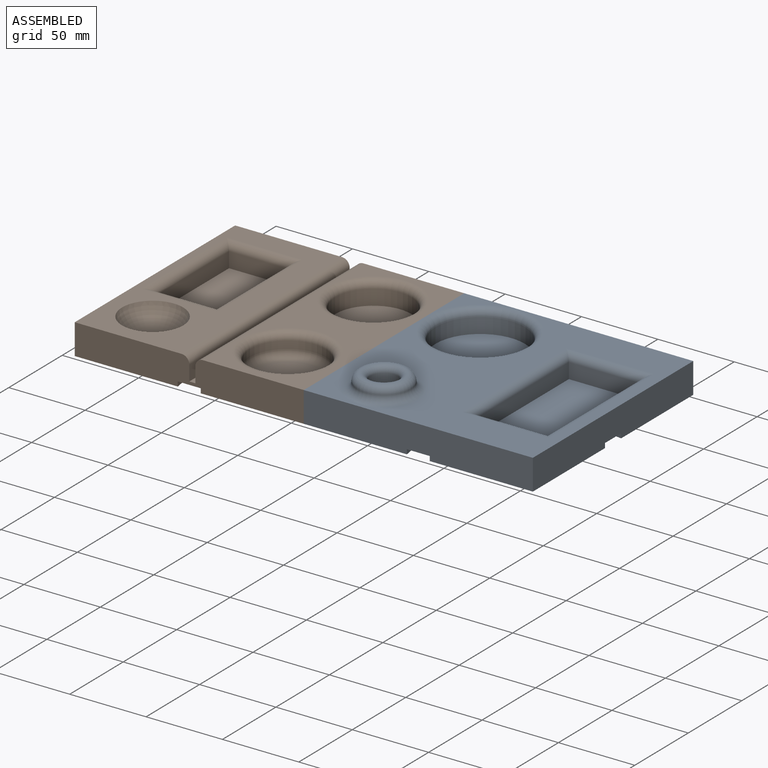
[diagram: assembled view]
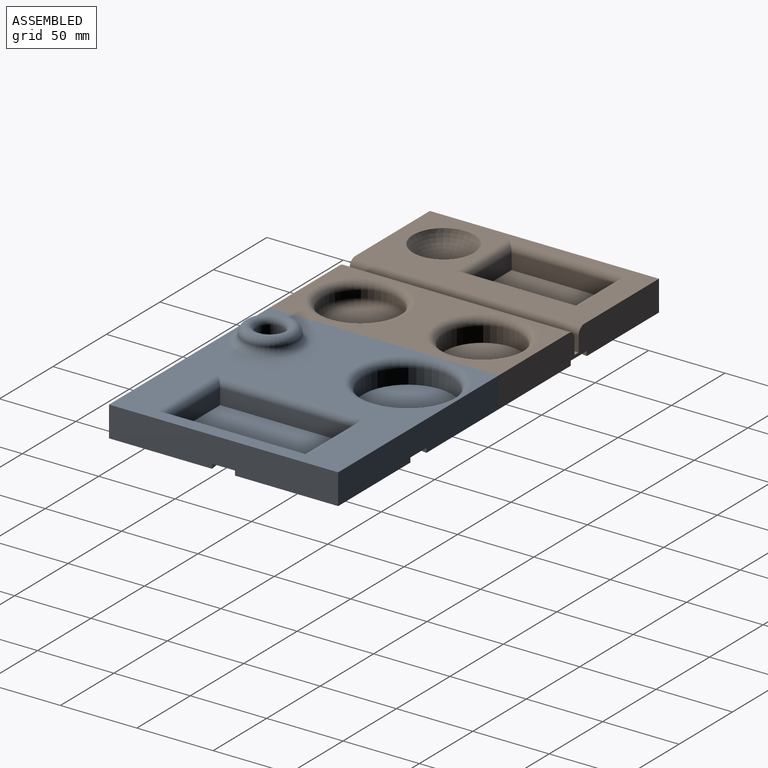
[diagram: assembled view, second angle]
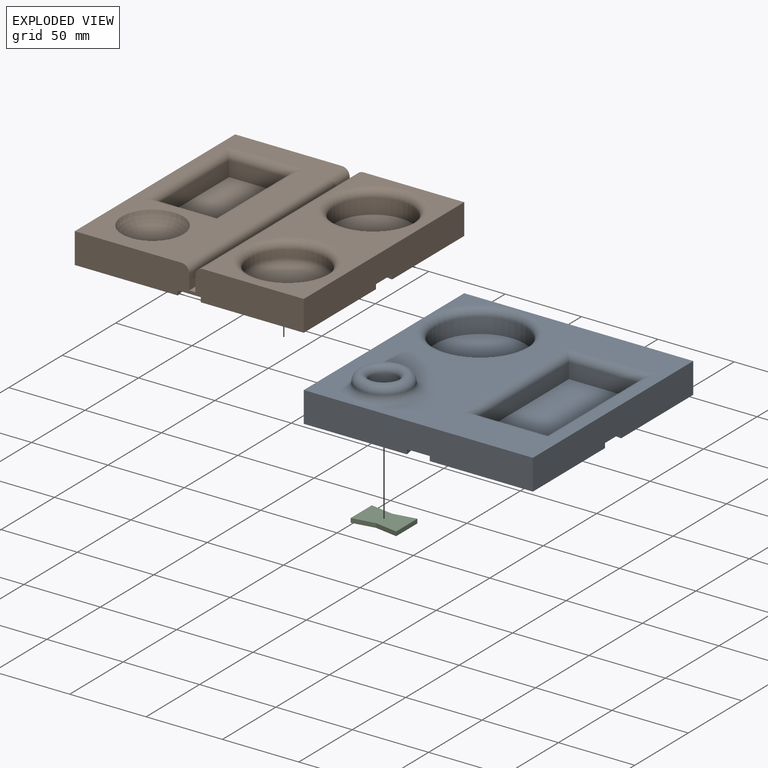
[diagram: exploded view]
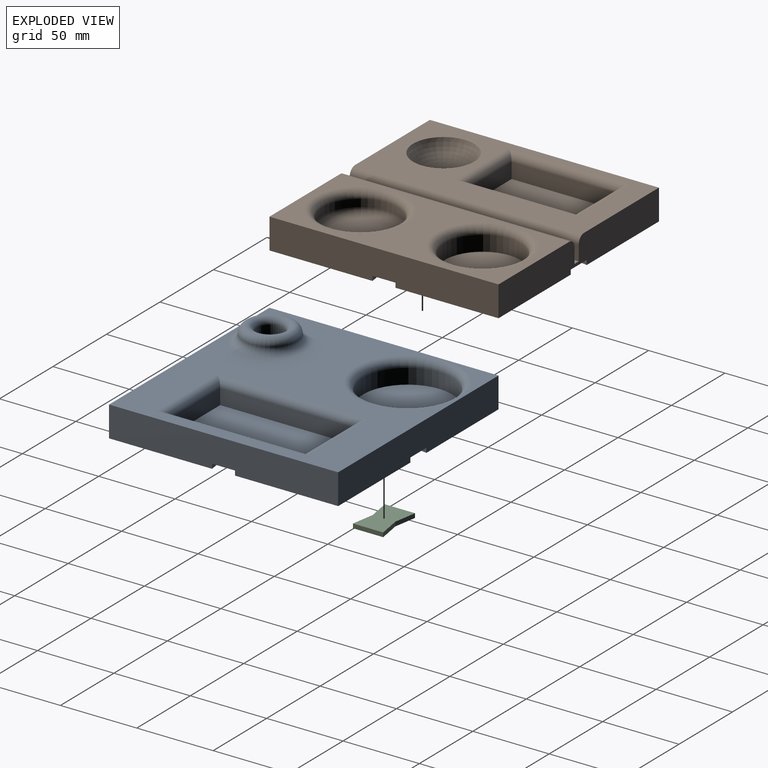
[diagram: exploded view, second angle]
ASSEMBLY  parts=3 mates=2
PART A: 39 faces, bbox 152.1x155.3x30 mm
  f0: plane 150x20mm, normal (0,1,0), area 2955mm2, adj f1,f2,f3,f10,f31,f33,f34
  f1: plane 150x20mm, normal (1,0,0), area 2955mm2, adj f0,f2,f4,f10,f23,f25,f26
  f2: plane 150x150mm, normal (0,0,-1), area 21450mm2, adj f0,f1,f3,f4,f23,f24,f25,f27
  f3: plane 150x20mm, normal (-1,0,0), area 2955mm2, adj f0,f2,f4,f10,f35,f37,f38
  f4: plane 150x20mm, normal (0,-1,0), area 2955mm2, adj f1,f2,f3,f10,f28,f29,f30
  f5: plane 88.5x10mm, normal (1,0,0), area 885mm2, adj f6,f8,f12,f15
  f6: plane 47.5x10mm, normal (0,-1,0), area 475mm2, adj f5,f7,f12,f14
  f7: plane 88.5x10mm, normal (-1,0,0), area 885mm2, adj f6,f8,f12,f16
  f8: plane 47.5x10mm, normal (0,1,0), area 475mm2, adj f5,f7,f12,f17
  f9: cylinder r=29.25mm len=58.5mm, axis (0,0,-1), area 1837.8mm2, adj f11,f13
  f10: plane 150x150mm, normal (0,0,1), area 11560.5mm2, adj f0,f1,f3,f4,f13,f14,f15,f16
  f11: plane 58.5x58.5mm, normal (0,0,1), area 2687.8mm2, adj f9
  f12: plane 88.5x47.5mm, normal (0,0,1), area 4203.8mm2, adj f5,f6,f7,f8
  f13: torus R=34.25mm, axis (0,0,1), area 1533.1mm2, adj f9,f10
  f14: cylinder r=5mm len=57.5mm, axis (-1,0,0), area 401.6mm2, adj f6,f10,f15,f16
  f15: cylinder r=5mm len=98.5mm, axis (0,-1,0), area 723.6mm2, adj f5,f10,f14,f17
  f16: cylinder r=5mm len=98.5mm, axis (0,1,0), area 723.6mm2, adj f7,f10,f14,f17
  f17: cylinder r=5mm len=57.5mm, axis (1,0,0), area 401.6mm2, adj f8,f10,f15,f16
  f18: plane 18x18mm, normal (0,0,1), area 254.5mm2, adj f19
  f19: cylinder r=9mm len=20.87mm, axis (0,0,1), area 1179.9mm2, adj f18,f22
  f20: torus R=12.5mm, axis (0,0,1), area 547.3mm2, adj f21,f22
  f21: torus R=22.5mm, axis (0,0,1), area 953.3mm2, adj f10,f20
  f22: torus R=13mm, axis (0,0,-1), area 597.2mm2, adj f19,f20
  f23: plane 15x3mm, normal (-0.16,0.99,0), area 45.6mm2, adj f1,f2,f24,f26
  f24: plane 20x3mm, normal (1,0,0), area 60mm2, adj f2,f23,f25,f26
  f25: plane 15x3mm, normal (-0.16,-0.99,0), area 45.6mm2, adj f1,f2,f24,f26
  f26: plane 20x15mm, normal (0,0,-1), area 262.5mm2, adj f1,f23,f24,f25
  f27: plane 20x3mm, normal (0,-1,0), area 60mm2, adj f2,f28,f29,f30
  f28: plane 15x3mm, normal (-0.99,0.16,0), area 45.6mm2, adj f2,f4,f27,f30
  f29: plane 15x3mm, normal (0.99,0.16,0), area 45.6mm2, adj f2,f4,f27,f30
  f30: plane 20x15mm, normal (0,0,-1), area 262.5mm2, adj f4,f27,f28,f29
  f31: plane 15x3mm, normal (-0.99,-0.16,0), area 45.6mm2, adj f0,f2,f32,f34
  f32: plane 20x3mm, normal (0,1,0), area 60mm2, adj f2,f31,f33,f34
  f33: plane 15x3mm, normal (0.99,-0.16,0), area 45.6mm2, adj f0,f2,f32,f34
  f34: plane 20x15mm, normal (0,0,-1), area 262.5mm2, adj f0,f31,f32,f33
  f35: plane 15x3mm, normal (0.16,-0.99,0), area 45.6mm2, adj f2,f3,f36,f38
  f36: plane 20x3mm, normal (-1,0,0), area 60mm2, adj f2,f35,f37,f38
  f37: plane 15x3mm, normal (0.16,0.99,0), area 45.6mm2, adj f2,f3,f36,f38
  f38: plane 20x15mm, normal (0,0,-1), area 262.5mm2, adj f3,f35,f36,f37
PART B: 46 faces, bbox 151x151x20 mm
  f0: plane 150x20mm, normal (0,-1,0), area 2884.3mm2, adj f1,f2,f3,f4,f6,f17,f18,f19
  f1: plane 150x20mm, normal (1,0,0), area 2955mm2, adj f0,f2,f3,f5,f35,f36,f37
  f2: plane 150x150mm, normal (0,0,-1), area 21450mm2, adj f0,f1,f5,f6,f30,f31,f32,f34
  f3: plane 150x66mm, normal (0,0,1), area 4292.1mm2, adj f0,f1,f5,f25,f26,f28
  f4: plane 150x70mm, normal (0,0,1), area 5268.4mm2, adj f0,f5,f6,f20,f21,f22,f23,f24
  f5: plane 150x20mm, normal (0,1,0), area 2884.3mm2, adj f1,f2,f3,f4,f6,f17,f18,f19
  f6: plane 150x20mm, normal (-1,0,0), area 2955mm2, adj f0,f2,f4,f5,f42,f44,f45
  f7: cylinder r=25mm len=50mm, axis (0,0,1), area 1570.8mm2, adj f8,f28
  f8: plane 50x50mm, normal (0,0,1), area 1963.5mm2, adj f7
  f9: cylinder r=24.75mm len=49.5mm, axis (0,0,1), area 777.5mm2, adj f26,f27
  f10: plane 39.5x39.5mm, normal (0,0,1), area 1225.4mm2, adj f27
  f11: plane 40x10mm, normal (0,-1,0), area 400mm2, adj f12,f14,f15,f21
  f12: plane 69.5x10mm, normal (1,0,0), area 695mm2, adj f11,f13,f15,f23
  f13: plane 40x10mm, normal (0,1,0), area 400mm2, adj f12,f14,f15,f22
  f14: plane 69.5x10mm, normal (-1,0,0), area 695mm2, adj f11,f13,f15,f20
  f15: plane 69.5x40mm, normal (0,0,1), area 2780mm2, adj f11,f12,f13,f14
  f16: plane 1.27x1.27mm, normal (0,0,1), area 1.3mm2, adj f29
  f17: plane 150x10mm, normal (-1,0,0), area 1500mm2, adj f0,f5,f19,f25
  f18: plane 150x10mm, normal (1,0,0), area 1500mm2, adj f0,f5,f19,f24
  f19: plane 150x4mm, normal (0,0,1), area 600mm2, adj f0,f5,f17,f18
  f20: cylinder r=5mm len=79.5mm, axis (0,1,0), area 574.4mm2, adj f4,f14,f21,f22
  f21: cylinder r=5mm len=50mm, axis (-1,0,0), area 342.7mm2, adj f4,f11,f20,f23
  f22: cylinder r=5mm len=50mm, axis (1,0,0), area 342.7mm2, adj f4,f13,f20,f23
  f23: cylinder r=5mm len=79.5mm, axis (0,-1,0), area 574.4mm2, adj f4,f12,f21,f22
  f24: cylinder r=5mm len=150mm, axis (0,-1,0), area 1178.1mm2, adj f0,f4,f5,f18
  f25: cylinder r=5mm len=150mm, axis (0,1,0), area 1178.1mm2, adj f0,f3,f5,f17
  f26: torus R=29.75mm, axis (0,0,-1), area 1311mm2, adj f3,f9
  f27: torus R=19.75mm, axis (0,0,1), area 1131.7mm2, adj f9,f10
  f28: torus R=30mm, axis (0,0,-1), area 1323.4mm2, adj f3,f7
  f29: torus R=0.64mm, axis (0,0,-1), area 1990.2mm2, adj f4,f16
  f30: plane 15x3mm, normal (-0.99,-0.16,0), area 45.6mm2, adj f2,f5,f31,f33
  f31: plane 20x3mm, normal (0,1,0), area 60mm2, adj f2,f30,f32,f33
  f32: plane 15x3mm, normal (0.99,-0.16,0), area 45.6mm2, adj f2,f5,f31,f33
  f33: plane 20x15mm, normal (0,0,-1), area 262.5mm2, adj f5,f30,f31,f32
  f34: plane 20x3mm, normal (1,0,0), area 60mm2, adj f2,f35,f36,f37
  f35: plane 15x3mm, normal (-0.16,-0.99,0), area 45.6mm2, adj f1,f2,f34,f37
  f36: plane 15x3mm, normal (-0.16,0.99,0), area 45.6mm2, adj f1,f2,f34,f37
  f37: plane 20x15mm, normal (0,0,-1), area 262.5mm2, adj f1,f34,f35,f36
  f38: plane 20x3mm, normal (0,-1,0), area 60mm2, adj f2,f39,f40,f41
  f39: plane 15x3mm, normal (-0.99,0.16,0), area 45.6mm2, adj f0,f2,f38,f41
  f40: plane 15x3mm, normal (0.99,0.16,0), area 45.6mm2, adj f0,f2,f38,f41
  f41: plane 20x15mm, normal (0,0,-1), area 262.5mm2, adj f0,f38,f39,f40
  f42: plane 15x3mm, normal (0.16,-0.99,0), area 45.6mm2, adj f2,f6,f43,f45
  f43: plane 20x3mm, normal (-1,0,0), area 60mm2, adj f2,f42,f44,f45
  f44: plane 15x3mm, normal (0.16,0.99,0), area 45.6mm2, adj f2,f6,f43,f45
  f45: plane 20x15mm, normal (0,0,-1), area 262.5mm2, adj f6,f42,f43,f44
PART C: 8 faces, bbox 29.8x19.8x2.8 mm
  f0: plane 19.8x2.8mm, normal (-1,0,0), area 55.4mm2, adj f1,f5,f6,f7
  f1: plane 14.9x2.8mm, normal (0.17,0.99,0), area 42.3mm2, adj f0,f2,f6,f7
  f2: plane 14.9x2.8mm, normal (-0.17,0.99,0), area 42.3mm2, adj f1,f3,f6,f7
  f3: plane 19.8x2.8mm, normal (1,0,0), area 55.4mm2, adj f2,f4,f6,f7
  f4: plane 14.9x2.8mm, normal (-0.17,-0.99,0), area 42.3mm2, adj f3,f5,f6,f7
  f5: plane 14.9x2.8mm, normal (0.17,-0.99,0), area 42.3mm2, adj f0,f4,f6,f7
  f6: plane 29.8x19.8mm, normal (0,0,-1), area 515.5mm2, adj f0,f1,f2,f3,f4,f5
  f7: plane 29.8x19.8mm, normal (0,0,1), area 515.5mm2, adj f0,f1,f2,f3,f4,f5
PLACE A t=(244.78,-34.32,-12.09)mm
PLACE B t=(362.89,-34.32,-12.09)mm
PLACE C t=(59.27,-11.89,-9.09)mm
MATE fastened B.f37 <-> C.f7  axis (0,0,-1) through (169.78,-34.32,-9.09)mm
MATE fastened C.f7 <-> A.f38  axis (0,0,1) through (169.78,-34.32,-9.09)mm
